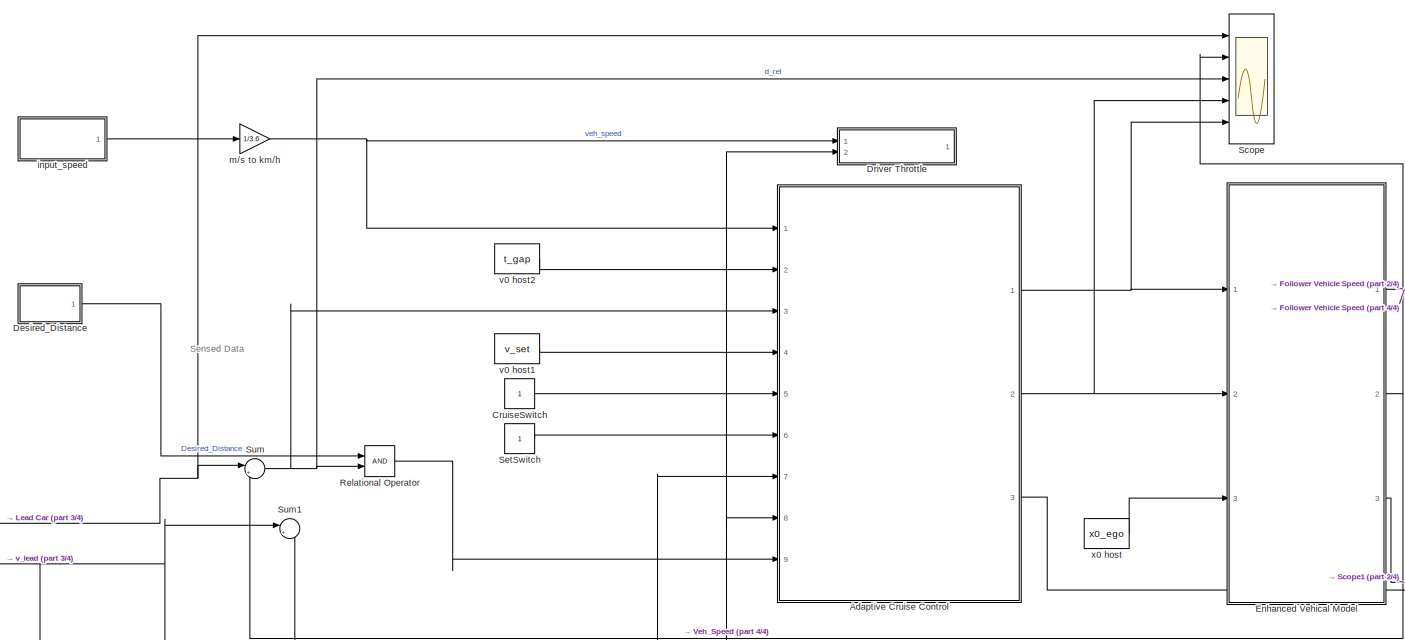
[diagram: root canvas - part 1/4, top center region]
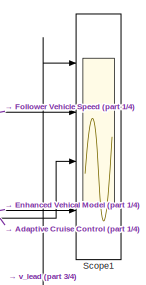
[diagram: root canvas - part 2/4, middle right region]
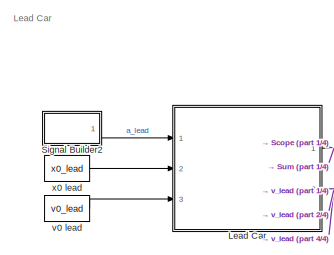
[diagram: root canvas - part 3/4, middle left region]
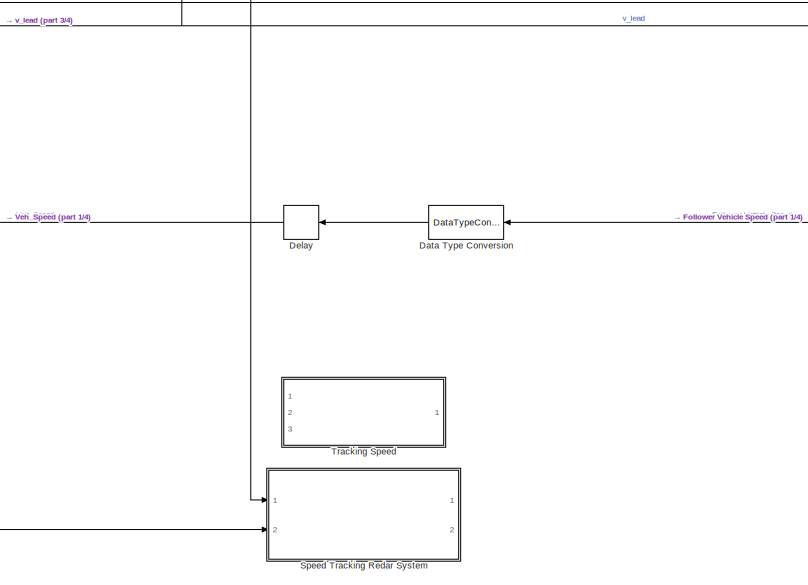
[diagram: root canvas - part 4/4, bottom center region]
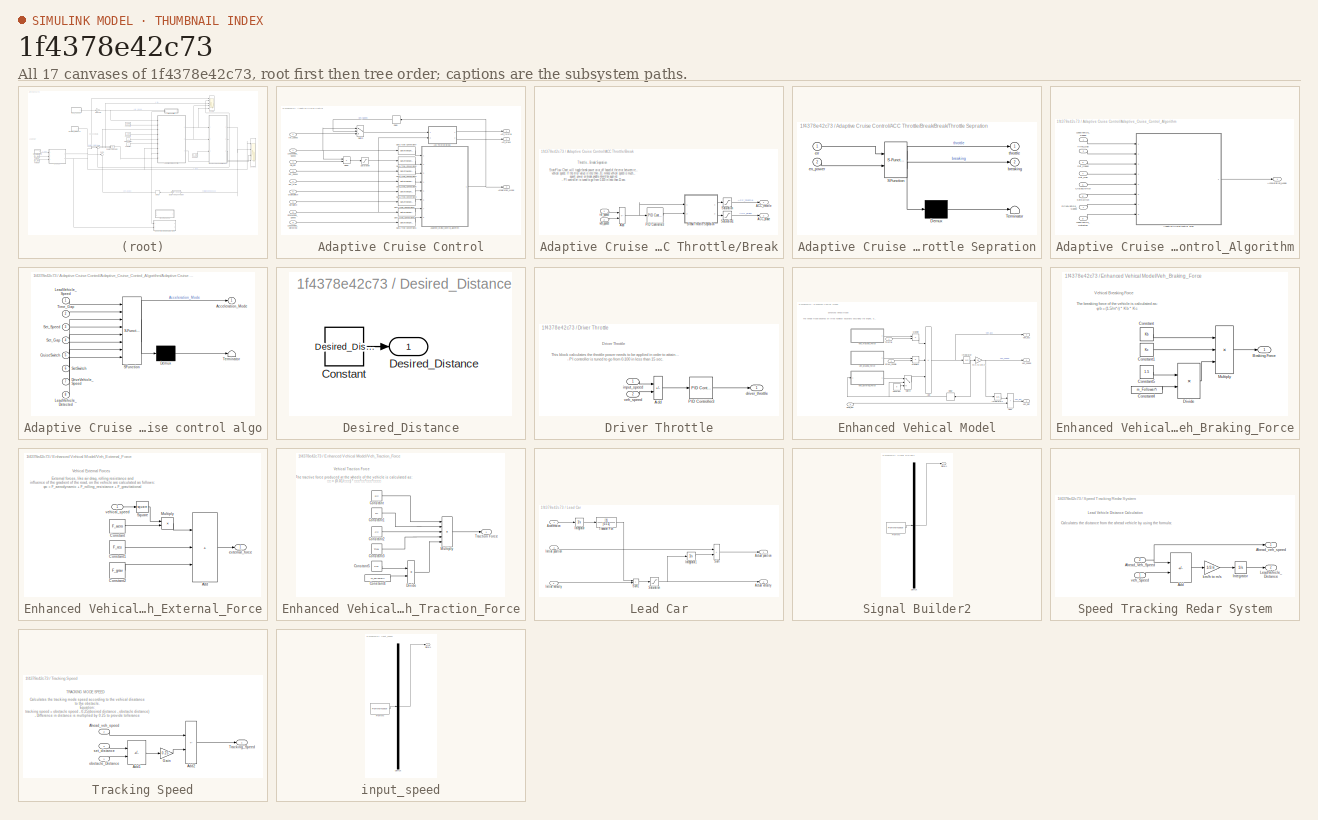
[diagram: thumbnail index - all 17 canvases of the model, root first then tree order]
MODEL slx_1f4378e42c73
KIND model
CONFIG AbsTol = auto
CONFIG EnableMultiTasking = off
CONFIG FixedStep = auto
CONFIG MaxStep = auto
CONFIG MinStep = auto
CONFIG RelTol = 1e-3
CONFIG SampleTimeConstraint = Unconstrained
CONFIG Solver = VariableStepAuto
CONFIG SolverName = VariableStepAuto
CONFIG StartTime = 0.0
CONFIG StopTime = 500
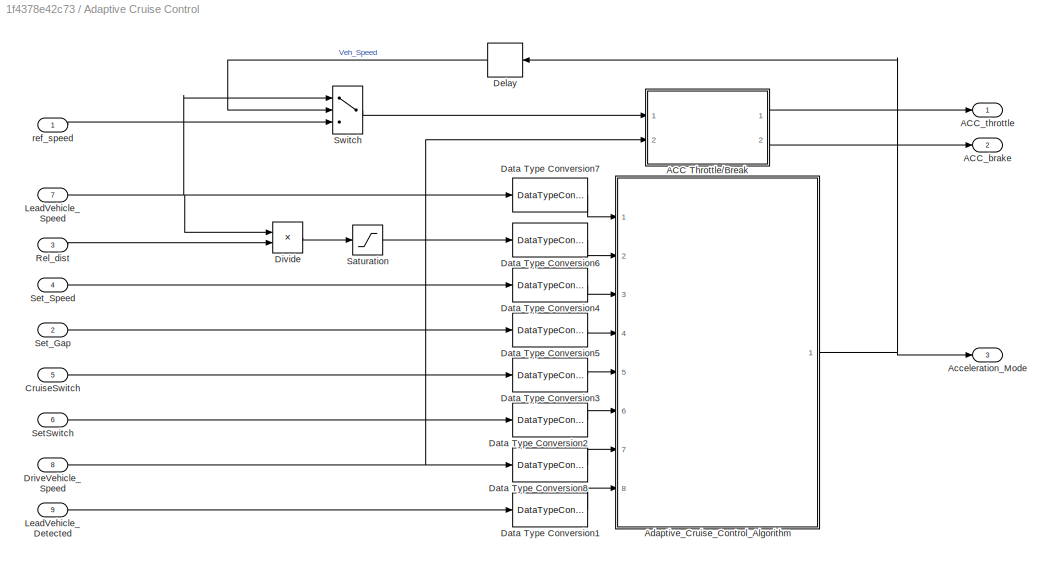
BLOCK [SubSystem] Adaptive Cruise Control
  Ports = [9, 3]
  RequestExecContextInheritance = off
BLOCK [SubSystem] Adaptive Cruise Control/ACC Throttle//Break
  NameLocation = top
  Ports = [2, 2]
  RequestExecContextInheritance = off
BLOCK [Outport] Adaptive Cruise Control/ACC Throttle//Break/ACC_brake
  Port = 2
  VectorParamsAs1DForOutWhenUnconnected = off
BLOCK [Outport] Adaptive Cruise Control/ACC Throttle//Break/ACC_throttle
  VectorParamsAs1DForOutWhenUnconnected = off
BLOCK [Sum] Adaptive Cruise Control/ACC Throttle//Break/Add
  IconShape = rectangular
  Inputs = +-
  Ports = [2, 1]
BLOCK [SubSystem] Adaptive Cruise Control/ACC Throttle//Break/Break//Throttle Sepration
  ErrorFcn = Stateflow.Translate.translate
  PermitHierarchicalResolution = ExplicitOnly
  Ports = [2, 2]
  RequestExecContextInheritance = off
  SFBlockType = Chart
  TreatAsAtomicUnit = on
BLOCK [Demux] Adaptive Cruise Control/ACC Throttle//Break/Break//Throttle Sepration/ Demux 
  Outputs = 1
  Ports = [1, 1]
BLOCK [S-Function] Adaptive Cruise Control/ACC Throttle//Break/Break//Throttle Sepration/ SFunction 
  EnableBusSupport = on
  FunctionName = sf_sfun
  PortCounts = [2 3]
  Ports = [2, 3]
  SFcnIsStateOwnerBlock = off
  SFunctionDeploymentMode = off
  Tag = Stateflow S-Function 1
BLOCK [Terminator] Adaptive Cruise Control/ACC Throttle//Break/Break//Throttle Sepration/ Terminator 
BLOCK [Outport] Adaptive Cruise Control/ACC Throttle//Break/Break//Throttle Sepration/breaking
  Port = 2
  VectorParamsAs1DForOutWhenUnconnected = off
BLOCK [Inport] Adaptive Cruise Control/ACC Throttle//Break/Break//Throttle Sepration/en_power
  Port = 2
BLOCK [Inport] Adaptive Cruise Control/ACC Throttle//Break/Break//Throttle Sepration/err
BLOCK [Outport] Adaptive Cruise Control/ACC Throttle//Break/Break//Throttle Sepration/throttle
  VectorParamsAs1DForOutWhenUnconnected = off
BLOCK [Reference] Adaptive Cruise Control/ACC Throttle//Break/PID Controller3  REF=simulink/Continuous/PID Controller
  Ports = [1, 1]
  SourceBlock = simulink/Continuous/PID Controller
  SourceProductBaseCode = SL
  SourceType = PID 1dof
BLOCK [Saturate] Adaptive Cruise Control/ACC Throttle//Break/Saturation
  LowerLimit = 0
  UpperLimit = 50
BLOCK [Saturate] Adaptive Cruise Control/ACC Throttle//Break/Saturation1
  LowerLimit = 0
  UpperLimit = 20
BLOCK [Inport] Adaptive Cruise Control/ACC Throttle//Break/ref_speed
BLOCK [Inport] Adaptive Cruise Control/ACC Throttle//Break/veh_speed
  Port = 2
BLOCK [Outport] Adaptive Cruise Control/ACC_brake
  Port = 2
BLOCK [Outport] Adaptive Cruise Control/ACC_throttle
BLOCK [Outport] Adaptive Cruise Control/Acceleration_Mode
  Port = 3
BLOCK [SubSystem] Adaptive Cruise Control/Adaptive_Cruise_Control_Algorithm
  Ports = [8, 1]
  RequestExecContextInheritance = off
BLOCK [Outport] Adaptive Cruise Control/Adaptive_Cruise_Control_Algorithm/Acceleration_Mode
  OutMax = 255
  OutMin = 0
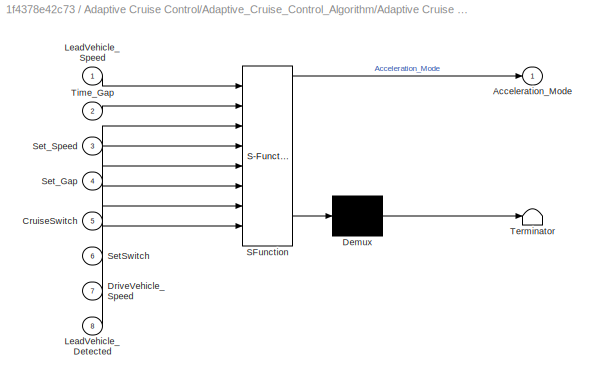
BLOCK [SubSystem] Adaptive Cruise Control/Adaptive_Cruise_Control_Algorithm/Adaptive Cruise control algo
  ErrorFcn = Stateflow.Translate.translate
  PermitHierarchicalResolution = ExplicitOnly
  Ports = [8, 1]
  RequestExecContextInheritance = off
  SFBlockType = Chart
  TreatAsAtomicUnit = on
BLOCK [Demux] Adaptive Cruise Control/Adaptive_Cruise_Control_Algorithm/Adaptive Cruise control algo/ Demux 
  Outputs = 1
  Ports = [1, 1]
BLOCK [S-Function] Adaptive Cruise Control/Adaptive_Cruise_Control_Algorithm/Adaptive Cruise control algo/ SFunction 
  EnableBusSupport = on
  FunctionName = sf_sfun
  PortCounts = [8 2]
  Ports = [8, 2]
  SFcnIsStateOwnerBlock = off
  SFunctionDeploymentMode = off
  Tag = Stateflow S-Function 3
BLOCK [Terminator] Adaptive Cruise Control/Adaptive_Cruise_Control_Algorithm/Adaptive Cruise control algo/ Terminator 
BLOCK [Outport] Adaptive Cruise Control/Adaptive_Cruise_Control_Algorithm/Adaptive Cruise control algo/Acceleration_Mode
BLOCK [Inport] Adaptive Cruise Control/Adaptive_Cruise_Control_Algorithm/Adaptive Cruise control algo/CruiseSwitch
  Port = 5
BLOCK [Inport] Adaptive Cruise Control/Adaptive_Cruise_Control_Algorithm/Adaptive Cruise control algo/DriveVehicle_Speed
  Port = 7
BLOCK [Inport] Adaptive Cruise Control/Adaptive_Cruise_Control_Algorithm/Adaptive Cruise control algo/LeadVehicle_Detected
  Port = 8
BLOCK [Inport] Adaptive Cruise Control/Adaptive_Cruise_Control_Algorithm/Adaptive Cruise control algo/LeadVehicle_Speed
BLOCK [Inport] Adaptive Cruise Control/Adaptive_Cruise_Control_Algorithm/Adaptive Cruise control algo/SetSwitch
  Port = 6
BLOCK [Inport] Adaptive Cruise Control/Adaptive_Cruise_Control_Algorithm/Adaptive Cruise control algo/Set_Gap
  Port = 4
BLOCK [Inport] Adaptive Cruise Control/Adaptive_Cruise_Control_Algorithm/Adaptive Cruise control algo/Set_Speed
  Port = 3
BLOCK [Inport] Adaptive Cruise Control/Adaptive_Cruise_Control_Algorithm/Adaptive Cruise control algo/Time_Gap
  Port = 2
BLOCK [Inport] Adaptive Cruise Control/Adaptive_Cruise_Control_Algorithm/CruiseSwitch
  Port = 5
BLOCK [Inport] Adaptive Cruise Control/Adaptive_Cruise_Control_Algorithm/DriveVehicle_Speed
  OutMax = 255
  OutMin = 0
  Port = 7
BLOCK [Inport] Adaptive Cruise Control/Adaptive_Cruise_Control_Algorithm/LeadVehicle_Detected
  OutMax = 255
  OutMin = 0
  Port = 8
BLOCK [Inport] Adaptive Cruise Control/Adaptive_Cruise_Control_Algorithm/LeadVehicle_Speed
  OutMax = 255
  OutMin = 0
BLOCK [Inport] Adaptive Cruise Control/Adaptive_Cruise_Control_Algorithm/SetSwitch
  Port = 6
BLOCK [Inport] Adaptive Cruise Control/Adaptive_Cruise_Control_Algorithm/Set_Gap
  Port = 4
BLOCK [Inport] Adaptive Cruise Control/Adaptive_Cruise_Control_Algorithm/Set_Speed
  Port = 3
BLOCK [Inport] Adaptive Cruise Control/Adaptive_Cruise_Control_Algorithm/Time_Gap
  Port = 2
BLOCK [Inport] Adaptive Cruise Control/CruiseSwitch
  Port = 5
BLOCK [DataTypeConversion] Adaptive Cruise Control/Data Type Conversion1
  RndMeth = Floor
  SaturateOnIntegerOverflow = off
BLOCK [DataTypeConversion] Adaptive Cruise Control/Data Type Conversion2
  RndMeth = Floor
  SaturateOnIntegerOverflow = off
BLOCK [DataTypeConversion] Adaptive Cruise Control/Data Type Conversion3
  RndMeth = Floor
  SaturateOnIntegerOverflow = off
BLOCK [DataTypeConversion] Adaptive Cruise Control/Data Type Conversion4
  RndMeth = Floor
  SaturateOnIntegerOverflow = off
BLOCK [DataTypeConversion] Adaptive Cruise Control/Data Type Conversion5
  RndMeth = Floor
  SaturateOnIntegerOverflow = off
BLOCK [DataTypeConversion] Adaptive Cruise Control/Data Type Conversion6
  RndMeth = Floor
  SaturateOnIntegerOverflow = off
BLOCK [DataTypeConversion] Adaptive Cruise Control/Data Type Conversion7
  RndMeth = Floor
  SaturateOnIntegerOverflow = off
BLOCK [DataTypeConversion] Adaptive Cruise Control/Data Type Conversion8
  RndMeth = Floor
  SaturateOnIntegerOverflow = off
BLOCK [Delay] Adaptive Cruise Control/Delay
  DelayLength = 1
  InitialCondition = 0
  InputPortMap = u0
  Ports = [1, 1]
BLOCK [Product] Adaptive Cruise Control/Divide
  Inputs = /*
  Ports = [2, 1]
BLOCK [Inport] Adaptive Cruise Control/DriveVehicle_Speed
  OutMax = 255
  OutMin = 0
  Port = 8
BLOCK [Inport] Adaptive Cruise Control/LeadVehicle_Detected
  OutMax = 1
  OutMin = 0
  Port = 9
BLOCK [Inport] Adaptive Cruise Control/LeadVehicle_Speed
  OutMax = 255
  OutMin = 0
  Port = 7
BLOCK [Inport] Adaptive Cruise Control/Rel_dist
  Port = 3
BLOCK [Saturate] Adaptive Cruise Control/Saturation
  LowerLimit = 0
  UpperLimit = 100
BLOCK [Inport] Adaptive Cruise Control/SetSwitch
  Port = 6
BLOCK [Inport] Adaptive Cruise Control/Set_Gap
  Port = 2
BLOCK [Inport] Adaptive Cruise Control/Set_Speed
  Port = 4
BLOCK [Switch] Adaptive Cruise Control/Switch
  Threshold = 2
BLOCK [Inport] Adaptive Cruise Control/ref_speed
BLOCK [Constant] CruiseSwitch
BLOCK [DataTypeConversion] Data Type Conversion
  RndMeth = Floor
  SaturateOnIntegerOverflow = off
BLOCK [Delay] Delay
  DelayLength = 1
  InitialCondition = 0
  InputPortMap = u0
  Ports = [1, 1]
BLOCK [SubSystem] Desired_Distance
  Ports = [0, 1]
  RequestExecContextInheritance = off
BLOCK [Constant] Desired_Distance/Constant
  Value = Desired_Distance
BLOCK [Outport] Desired_Distance/Desired_Distance
  VectorParamsAs1DForOutWhenUnconnected = off
BLOCK [SubSystem] Driver Throttle
  NameLocation = top
  Ports = [2, 1]
  RequestExecContextInheritance = off
BLOCK [Sum] Driver Throttle/Add
  IconShape = rectangular
  Inputs = +-
  Ports = [2, 1]
BLOCK [Reference] Driver Throttle/PID Controller3  REF=simulink/Continuous/PID Controller
  Ports = [1, 1]
  SourceBlock = simulink/Continuous/PID Controller
  SourceProductBaseCode = SL
  SourceType = PID 1dof
BLOCK [Outport] Driver Throttle/driver_throttle
  VectorParamsAs1DForOutWhenUnconnected = off
BLOCK [Inport] Driver Throttle/input_speed
BLOCK [Inport] Driver Throttle/veh_speed
  Port = 2
BLOCK [SubSystem] Enhanced Vehical Model
  Ports = [3, 3]
  RequestExecContextInheritance = off
BLOCK [Sum] Enhanced Vehical Model/Add
  IconShape = rectangular
  Inputs = +--
  Ports = [3, 1]
BLOCK [Sum] Enhanced Vehical Model/Add1
  IconShape = rectangular
  Ports = [2, 1]
BLOCK [Inport] Enhanced Vehical Model/Brake_Peddle
  Port = 2
BLOCK [Constant] Enhanced Vehical Model/Constant
  Value = 0
BLOCK [Delay] Enhanced Vehical Model/Delay
  DelayLength = 1
  InitialCondition = 0
  InputPortMap = u0
  Ports = [1, 1]
BLOCK [Integrator] Enhanced Vehical Model/Integrator
  Ports = [1, 1]
BLOCK [Integrator] Enhanced Vehical Model/Integrator1
  Ports = [1, 1]
BLOCK [Product] Enhanced Vehical Model/Multiply
  Ports = [2, 1]
BLOCK [Product] Enhanced Vehical Model/Multiply1
  Ports = [2, 1]
BLOCK [Switch] Enhanced Vehical Model/Switch
  Criteria = u2 > Threshold
BLOCK [Inport] Enhanced Vehical Model/Throttle
BLOCK [SubSystem] Enhanced Vehical Model/Veh_Braking_Force
  Ports = [0, 1]
  RequestExecContextInheritance = off
BLOCK [Outport] Enhanced Vehical Model/Veh_Braking_Force/Braking Force 
  VectorParamsAs1DForOutWhenUnconnected = off
BLOCK [Constant] Enhanced Vehical Model/Veh_Braking_Force/Constant
  Value = Kb
BLOCK [Constant] Enhanced Vehical Model/Veh_Braking_Force/Constant1
  Value = Kc
BLOCK [Constant] Enhanced Vehical Model/Veh_Braking_Force/Constant4
  Value = m_Follower*r
BLOCK [Constant] Enhanced Vehical Model/Veh_Braking_Force/Constant5
  Value = 1.5
BLOCK [Product] Enhanced Vehical Model/Veh_Braking_Force/Divide
  Inputs = */
  Ports = [2, 1]
BLOCK [Product] Enhanced Vehical Model/Veh_Braking_Force/Multiply
  Inputs = 3
  Ports = [3, 1]
BLOCK [SubSystem] Enhanced Vehical Model/Veh_External_Force
  Ports = [1, 1]
  RequestExecContextInheritance = off
BLOCK [Sum] Enhanced Vehical Model/Veh_External_Force/Add
  IconShape = rectangular
  Inputs = +++
  Ports = [3, 1]
BLOCK [Constant] Enhanced Vehical Model/Veh_External_Force/Constant
  Value = F_aero
BLOCK [Constant] Enhanced Vehical Model/Veh_External_Force/Constant1
  Value = F_res
BLOCK [Constant] Enhanced Vehical Model/Veh_External_Force/Constant2
  Value = F_grav
BLOCK [Product] Enhanced Vehical Model/Veh_External_Force/Multiply
  Ports = [2, 1]
BLOCK [Math] Enhanced Vehical Model/Veh_External_Force/Square
  Operator = square
  Ports = [1, 1]
  SignedPower = on
BLOCK [Outport] Enhanced Vehical Model/Veh_External_Force/external_force
  VectorParamsAs1DForOutWhenUnconnected = off
BLOCK [Inport] Enhanced Vehical Model/Veh_External_Force/vehical_speed
BLOCK [SubSystem] Enhanced Vehical Model/Veh_Traction_Force
  Ports = [0, 1]
  RequestExecContextInheritance = off
BLOCK [Constant] Enhanced Vehical Model/Veh_Traction_Force/Constant
  Value = Rtr
BLOCK [Constant] Enhanced Vehical Model/Veh_Traction_Force/Constant1
  Value = Rf
BLOCK [Constant] Enhanced Vehical Model/Veh_Traction_Force/Constant2
  Value = Ctr
BLOCK [Constant] Enhanced Vehical Model/Veh_Traction_Force/Constant3
  Value = Tmax
BLOCK [Constant] Enhanced Vehical Model/Veh_Traction_Force/Constant4
  Value = m_Follower*r
BLOCK [Constant] Enhanced Vehical Model/Veh_Traction_Force/Constant5
  Value = 0.01
BLOCK [Product] Enhanced Vehical Model/Veh_Traction_Force/Divide
  Inputs = */
  Ports = [2, 1]
BLOCK [Product] Enhanced Vehical Model/Veh_Traction_Force/Multiply
  Inputs = 5
  Ports = [5, 1]
BLOCK [Outport] Enhanced Vehical Model/Veh_Traction_Force/Traction Force
  VectorParamsAs1DForOutWhenUnconnected = off
BLOCK [Inport] Enhanced Vehical Model/initial_dist
  Port = 3
BLOCK [Gain] Enhanced Vehical Model/m//s to km//h
  Gain = 3.6
BLOCK [Outport] Enhanced Vehical Model/veh_acc
  Port = 3
  VectorParamsAs1DForOutWhenUnconnected = off
BLOCK [Outport] Enhanced Vehical Model/veh_dist
  Port = 2
  VectorParamsAs1DForOutWhenUnconnected = off
BLOCK [Outport] Enhanced Vehical Model/veh_speed
  VectorParamsAs1DForOutWhenUnconnected = off
BLOCK [SubSystem] Lead Car
  Ports = [3, 2]
  RequestExecContextInheritance = off
BLOCK [Inport] Lead Car/Acceleration
BLOCK [Outport] Lead Car/Actual position
  VectorParamsAs1DForOutWhenUnconnected = off
BLOCK [Outport] Lead Car/Actual velocity
  Port = 2
  VectorParamsAs1DForOutWhenUnconnected = off
BLOCK [Inport] Lead Car/Initial position
  Port = 2
BLOCK [Inport] Lead Car/Initial velocity
  Port = 3
BLOCK [Integrator] Lead Car/Integrator
  Ports = [1, 1]
BLOCK [Integrator] Lead Car/Integrator1
  Ports = [1, 1]
BLOCK [Saturate] Lead Car/Saturation
  LowerLimit = 0
  UpperLimit = 50
BLOCK [Sum] Lead Car/Sum
  IconShape = rectangular
  Ports = [2, 1]
BLOCK [Sum] Lead Car/Sum1
  IconShape = rectangular
  Ports = [2, 1]
BLOCK [TransferFcn] Lead Car/Transfer Fcn
  Denominator = [0.5 1]
BLOCK [RelationalOperator] Relational Operator
  InputSameDT = off
  OutDataTypeStr = boolean
  Ports = [2, 1]
  RndMeth = Simplest
BLOCK [Scope] Scope
  Floating = off
  NumInputPorts = 5
  Ports = [5]
  ScopeSpecificationString = Simulink.scopes.TimeScopeBlockCfg('CurrentConfiguration', extmgr.ConfigurationSet(extmgr.Configuration('Core','General UI',true),extmgr.Configuration('Core','Source UI',true),extmgr.Configuration('Sources','WiredSimulink',true),extmgr.Configuration('Visuals','Time Domain',true,'SerializedDisplays',{struct('MinYLimReal','-771.4446','MaxYLimReal','7443.00137','YLabelReal','{\itv} in {\it km/h}','Min...<+4366ch>
BLOCK [Scope] Scope1
  Floating = off
  NumInputPorts = 4
  Ports = [4]
  ScopeSpecificationString = Simulink.scopes.TimeScopeBlockCfg('CurrentConfiguration', extmgr.ConfigurationSet(extmgr.Configuration('Core','General UI',true),extmgr.Configuration('Core','Source UI',true),extmgr.Configuration('Sources','WiredSimulink',true,'DataLoggingVariableName','ScopeData1'),extmgr.Configuration('Visuals','Time Domain',true,'SerializedDisplays',{struct('MinYLimReal','-6.25','MaxYLimReal','56.25','YLabelRea...<+4290ch>
BLOCK [Constant] SetSwitch
BLOCK [SubSystem] Signal Builder2
  ClipboardFcn = sigbuilder_block('clipboard');
  CloseFcn = sigbuilder_block('close');
  ContinueFcn = sigbuilder_block('continue');
  CopyFcn = sigbuilder_block('copy');
  DeleteFcn = sigbuilder_block('delete');
  LoadFcn = sigbuilder_block('load');
  MaskHideContents = on
  ModelCloseFcn = sigbuilder_block('modelClose');
  NameChangeFcn = sigbuilder_block('namechange');
  OpenFcn = sigbuilder_block('open',[883.5 285.75 550.5 318.75 ]);
  PauseFcn = sigbuilder_block('pause');
  Ports = [0, 1]
  PreSaveFcn = sigbuilder_block('preSave');
  RequestExecContextInheritance = off
  StartFcn = sigbuilder_block('start');
  StopFcn = sigbuilder_block('stop');
  Tag = STV Subsys
BLOCK [Demux] Signal Builder2/Demux
  DisplayOption = none
  Outputs = 1
  Ports = [1, 1]
  Tag = STV Demux
BLOCK [FromWorkspace] Signal Builder2/FromWs
  Tag = STV FromWs
  VariableName = tuvar
BLOCK [Outport] Signal Builder2/Signal 1
  Tag = STV Outport
BLOCK [SubSystem] Speed Tracking Redar System
  Commented = on
  Ports = [2, 2]
  RequestExecContextInheritance = off
BLOCK [Sum] Speed Tracking Redar System/Add
  IconShape = rectangular
  Inputs = +-
  Ports = [2, 1]
BLOCK [Inport] Speed Tracking Redar System/Ahead_Veh_Speed
  Port = 2
BLOCK [Outport] Speed Tracking Redar System/Ahead_veh_speed
  VectorParamsAs1DForOutWhenUnconnected = off
BLOCK [Integrator] Speed Tracking Redar System/Integrator
  InitialCondition = 100
  Ports = [1, 1]
BLOCK [Outport] Speed Tracking Redar System/LeadVehicle_Distance
  Port = 2
  VectorParamsAs1DForOutWhenUnconnected = off
BLOCK [Gain] Speed Tracking Redar System/km//h to m//s
  Gain = 1/3.6
BLOCK [Inport] Speed Tracking Redar System/veh_Speed
BLOCK [Sum] Sum
  Inputs = |+-
  Ports = [2, 1]
BLOCK [Sum] Sum1
  Inputs = |+-
  Ports = [2, 1]
BLOCK [SubSystem] Tracking Speed
  Commented = on
  Ports = [3, 1]
  RequestExecContextInheritance = off
BLOCK [Sum] Tracking Speed/Add1
  IconShape = rectangular
  Inputs = +-
  Ports = [2, 1]
BLOCK [Sum] Tracking Speed/Add2
  IconShape = rectangular
  Inputs = +-
  Ports = [2, 1]
BLOCK [Inport] Tracking Speed/Ahead_veh_speed
  Port = 2
BLOCK [Gain] Tracking Speed/Gain
  Gain = 0.25
BLOCK [Outport] Tracking Speed/Tracking_Speed
  VectorParamsAs1DForOutWhenUnconnected = off
BLOCK [Inport] Tracking Speed/obstacle_Distance
BLOCK [Inport] Tracking Speed/set_distance
  Port = 3
BLOCK [SubSystem] input_speed
  ClipboardFcn = sigbuilder_block('clipboard');
  CloseFcn = sigbuilder_block('close');
  ContinueFcn = sigbuilder_block('continue');
  CopyFcn = sigbuilder_block('copy');
  DeleteFcn = sigbuilder_block('delete');
  LoadFcn = sigbuilder_block('load');
  MaskHideContents = on
  ModelCloseFcn = sigbuilder_block('modelClose');
  NameChangeFcn = sigbuilder_block('namechange');
  OpenFcn = sigbuilder_block('open',[167.25 146.25 1152 549.75 ]);
  PauseFcn = sigbuilder_block('pause');
  Ports = [0, 1]
  PreSaveFcn = sigbuilder_block('preSave');
  RequestExecContextInheritance = off
  StartFcn = sigbuilder_block('start');
  StopFcn = sigbuilder_block('stop');
  Tag = STV Subsys
BLOCK [Demux] input_speed/Demux
  DisplayOption = none
  Outputs = 1
  Ports = [1, 1]
  Tag = STV Demux
BLOCK [FromWorkspace] input_speed/FromWs
  Tag = STV FromWs
  VariableName = tuvar
BLOCK [Outport] input_speed/Signal 1
  Tag = STV Outport
BLOCK [Gain] m//s to km//h
  Gain = 1/3.6
BLOCK [Constant] v0 host1
  SampleTime = Ts
  Value = v_set
BLOCK [Constant] v0 host2
  SampleTime = Ts
  Value = t_gap
BLOCK [Constant] v0 lead
  SampleTime = Ts
  Value = v0_lead
BLOCK [Constant] x0 host
  SampleTime = Ts
  Value = x0_ego
BLOCK [Constant] x0 lead
  SampleTime = Ts
  Value = x0_lead
ANNOTATION (root): Lead Car
ANNOTATION (root): Sensed Data
ANNOTATION Adaptive Cruise Control/ACC Throttle//Break: StateFlow Chart will toggle break power on or off based of the error between refrence speed and vehical speed. If the error value is less than -10, means vehical speed is much greater than refrence speed, power on break paddle should be applied. - PI controller is tuned to go from 0-100 in less than 15 sec.
ANNOTATION Adaptive Cruise Control/ACC Throttle//Break: Throttle - Break Sepration
ANNOTATION Driver Throttle: This block calculates the throttle power needs to be applied in order to attain the input speed - PI controller is tuned to go from 0-100 in less than 15 sec.
ANNOTATION Driver Throttle: Driver Throttle
ANNOTATION Enhanced Vehical Model: The vehicle model depends on three nonlinear equations describing the engine, brake system and dynamics of the vehicle.
ANNOTATION Enhanced Vehical Model: Enhanced Vehical Model
ANNOTATION Enhanced Vehical Model/Veh_Braking_Force: The breaking force of the vehicle is calculated as: φb = (1.5/m*r) * Kb * Kc
ANNOTATION Enhanced Vehical Model/Veh_Braking_Force: Vehical Breaking Force
ANNOTATION Enhanced Vehical Model/Veh_External_Force: External forces, like air drag, rolling resistance and influence of the gradient of the road, on the vehicle are calculated as follows: φc = F_aerodynamic + F_rolling_resistance + F_gravitational
ANNOTATION Enhanced Vehical Model/Veh_External_Force: Vehical External Forces
ANNOTATION Enhanced Vehical Model/Veh_Traction_Force: The tractive force produced at the wheels of the vehicle is calculated as: 𝜑𝑡 = (0.01/𝑚∗𝑟) * 𝑅𝑡𝑟*𝑅𝑓*𝐶𝑡𝑟*𝑇𝑚𝑎𝑥
ANNOTATION Enhanced Vehical Model/Veh_Traction_Force: Vehical Traction Force
ANNOTATION Speed Tracking Redar System: Calculates the distance from the ahead vehicle by using the formula:
ANNOTATION Speed Tracking Redar System: Lead Vehicle Distance Calculation
ANNOTATION Tracking Speed: Calculates the tracking mode speed according to the vehical disatance to the obstacle. Equation: tracking speed = obstacle speed - 0.25(desired distance - obstacle distance) - Difference in distance is multiplied by 0.25 to provide tollerance
ANNOTATION Tracking Speed: TRACKING MODE SPEED
NET Adaptive Cruise Control/ACC Throttle//Break/Add:1 -> Adaptive Cruise Control/ACC Throttle//Break/Break//Throttle Sepration:1, Adaptive Cruise Control/ACC Throttle//Break/PID Controller3:1
LINE Adaptive Cruise Control/ACC Throttle//Break/Break//Throttle Sepration:1 -> Adaptive Cruise Control/ACC Throttle//Break/Saturation:1
LINE Adaptive Cruise Control/ACC Throttle//Break/Break//Throttle Sepration:2 -> Adaptive Cruise Control/ACC Throttle//Break/Saturation1:1
LINE Adaptive Cruise Control/ACC Throttle//Break/PID Controller3:1 -> Adaptive Cruise Control/ACC Throttle//Break/Break//Throttle Sepration:2
LINE Adaptive Cruise Control/ACC Throttle//Break/Saturation1:1 -> Adaptive Cruise Control/ACC Throttle//Break/ACC_brake:1
LINE Adaptive Cruise Control/ACC Throttle//Break/Saturation:1 -> Adaptive Cruise Control/ACC Throttle//Break/ACC_throttle:1
LINE Adaptive Cruise Control/ACC Throttle//Break/ref_speed:1 -> Adaptive Cruise Control/ACC Throttle//Break/Add:1
LINE Adaptive Cruise Control/ACC Throttle//Break/veh_speed:1 -> Adaptive Cruise Control/ACC Throttle//Break/Add:2
LINE Adaptive Cruise Control/ACC Throttle//Break:1 -> Adaptive Cruise Control/ACC_throttle:1
LINE Adaptive Cruise Control/ACC Throttle//Break:2 -> Adaptive Cruise Control/ACC_brake:1
LINE Adaptive Cruise Control/Adaptive_Cruise_Control_Algorithm/Adaptive Cruise control algo:1 -> Adaptive Cruise Control/Adaptive_Cruise_Control_Algorithm/Acceleration_Mode:1
LINE Adaptive Cruise Control/Adaptive_Cruise_Control_Algorithm/CruiseSwitch:1 -> Adaptive Cruise Control/Adaptive_Cruise_Control_Algorithm/Adaptive Cruise control algo:5
LINE Adaptive Cruise Control/Adaptive_Cruise_Control_Algorithm/DriveVehicle_Speed:1 -> Adaptive Cruise Control/Adaptive_Cruise_Control_Algorithm/Adaptive Cruise control algo:7
LINE Adaptive Cruise Control/Adaptive_Cruise_Control_Algorithm/LeadVehicle_Detected:1 -> Adaptive Cruise Control/Adaptive_Cruise_Control_Algorithm/Adaptive Cruise control algo:8
LINE Adaptive Cruise Control/Adaptive_Cruise_Control_Algorithm/LeadVehicle_Speed:1 -> Adaptive Cruise Control/Adaptive_Cruise_Control_Algorithm/Adaptive Cruise control algo:1
LINE Adaptive Cruise Control/Adaptive_Cruise_Control_Algorithm/SetSwitch:1 -> Adaptive Cruise Control/Adaptive_Cruise_Control_Algorithm/Adaptive Cruise control algo:6
LINE Adaptive Cruise Control/Adaptive_Cruise_Control_Algorithm/Set_Gap:1 -> Adaptive Cruise Control/Adaptive_Cruise_Control_Algorithm/Adaptive Cruise control algo:4
LINE Adaptive Cruise Control/Adaptive_Cruise_Control_Algorithm/Set_Speed:1 -> Adaptive Cruise Control/Adaptive_Cruise_Control_Algorithm/Adaptive Cruise control algo:3
LINE Adaptive Cruise Control/Adaptive_Cruise_Control_Algorithm/Time_Gap:1 -> Adaptive Cruise Control/Adaptive_Cruise_Control_Algorithm/Adaptive Cruise control algo:2
NET Adaptive Cruise Control/Adaptive_Cruise_Control_Algorithm:1 -> Adaptive Cruise Control/Acceleration_Mode:1, Adaptive Cruise Control/Delay:1
LINE Adaptive Cruise Control/CruiseSwitch:1 -> Adaptive Cruise Control/Data Type Conversion3:1
LINE Adaptive Cruise Control/Data Type Conversion1:1 -> Adaptive Cruise Control/Adaptive_Cruise_Control_Algorithm:8
LINE Adaptive Cruise Control/Data Type Conversion2:1 -> Adaptive Cruise Control/Adaptive_Cruise_Control_Algorithm:6
LINE Adaptive Cruise Control/Data Type Conversion3:1 -> Adaptive Cruise Control/Adaptive_Cruise_Control_Algorithm:5
LINE Adaptive Cruise Control/Data Type Conversion4:1 -> Adaptive Cruise Control/Adaptive_Cruise_Control_Algorithm:3
LINE Adaptive Cruise Control/Data Type Conversion5:1 -> Adaptive Cruise Control/Adaptive_Cruise_Control_Algorithm:4
LINE Adaptive Cruise Control/Data Type Conversion6:1 -> Adaptive Cruise Control/Adaptive_Cruise_Control_Algorithm:2
LINE Adaptive Cruise Control/Data Type Conversion7:1 -> Adaptive Cruise Control/Adaptive_Cruise_Control_Algorithm:1
LINE Adaptive Cruise Control/Data Type Conversion8:1 -> Adaptive Cruise Control/Adaptive_Cruise_Control_Algorithm:7
LINE Adaptive Cruise Control/Delay:1 -> Adaptive Cruise Control/Switch:2
LINE Adaptive Cruise Control/Divide:1 -> Adaptive Cruise Control/Saturation:1
NET Adaptive Cruise Control/DriveVehicle_Speed:1 -> Adaptive Cruise Control/ACC Throttle//Break:2, Adaptive Cruise Control/Data Type Conversion8:1
LINE Adaptive Cruise Control/LeadVehicle_Detected:1 -> Adaptive Cruise Control/Data Type Conversion1:1
NET Adaptive Cruise Control/LeadVehicle_Speed:1 -> Adaptive Cruise Control/Data Type Conversion7:1, Adaptive Cruise Control/Divide:1, Adaptive Cruise Control/Switch:1
LINE Adaptive Cruise Control/Rel_dist:1 -> Adaptive Cruise Control/Divide:2
LINE Adaptive Cruise Control/Saturation:1 -> Adaptive Cruise Control/Data Type Conversion6:1
LINE Adaptive Cruise Control/SetSwitch:1 -> Adaptive Cruise Control/Data Type Conversion2:1
LINE Adaptive Cruise Control/Set_Gap:1 -> Adaptive Cruise Control/Data Type Conversion5:1
LINE Adaptive Cruise Control/Set_Speed:1 -> Adaptive Cruise Control/Data Type Conversion4:1
LINE Adaptive Cruise Control/Switch:1 -> Adaptive Cruise Control/ACC Throttle//Break:1
LINE Adaptive Cruise Control/ref_speed:1 -> Adaptive Cruise Control/Switch:3
NET Adaptive Cruise Control:1 -> Enhanced Vehical Model:1, Scope:5
NET Adaptive Cruise Control:2 -> Enhanced Vehical Model:2, Scope:4
LINE Adaptive Cruise Control:3 -> Scope1:3
LINE CruiseSwitch:1 -> Adaptive Cruise Control:5
LINE Data Type Conversion:1 -> Delay:1
NET Delay:1 -> Adaptive Cruise Control:8, Driver Throttle:2, Speed Tracking Redar System:1, Sum1:2
LINE Desired_Distance/Constant:1 -> Desired_Distance/Desired_Distance:1
LINE Desired_Distance:1 -> Relational Operator:1
LINE Driver Throttle/Add:1 -> Driver Throttle/PID Controller3:1
LINE Driver Throttle/PID Controller3:1 -> Driver Throttle/driver_throttle:1
LINE Driver Throttle/input_speed:1 -> Driver Throttle/Add:1
LINE Driver Throttle/veh_speed:1 -> Driver Throttle/Add:2
LINE Enhanced Vehical Model/Add1:1 -> Enhanced Vehical Model/veh_dist:1
NET Enhanced Vehical Model/Add:1 -> Enhanced Vehical Model/Integrator:1, Enhanced Vehical Model/veh_acc:1
LINE Enhanced Vehical Model/Brake_Peddle:1 -> Enhanced Vehical Model/Multiply1:2
LINE Enhanced Vehical Model/Constant:1 -> Enhanced Vehical Model/Switch:3
NET Enhanced Vehical Model/Delay:1 -> Enhanced Vehical Model/Switch:2, Enhanced Vehical Model/Veh_External_Force:1
LINE Enhanced Vehical Model/Integrator1:1 -> Enhanced Vehical Model/Add1:1
NET Enhanced Vehical Model/Integrator:1 -> Enhanced Vehical Model/Delay:1, Enhanced Vehical Model/m//s to km//h:1
LINE Enhanced Vehical Model/Multiply1:1 -> Enhanced Vehical Model/Add:2
LINE Enhanced Vehical Model/Multiply:1 -> Enhanced Vehical Model/Add:1
LINE Enhanced Vehical Model/Switch:1 -> Enhanced Vehical Model/Add:3
LINE Enhanced Vehical Model/Throttle:1 -> Enhanced Vehical Model/Multiply:2
LINE Enhanced Vehical Model/Veh_Braking_Force/Constant1:1 -> Enhanced Vehical Model/Veh_Braking_Force/Multiply:2
LINE Enhanced Vehical Model/Veh_Braking_Force/Constant4:1 -> Enhanced Vehical Model/Veh_Braking_Force/Divide:2
LINE Enhanced Vehical Model/Veh_Braking_Force/Constant5:1 -> Enhanced Vehical Model/Veh_Braking_Force/Divide:1
LINE Enhanced Vehical Model/Veh_Braking_Force/Constant:1 -> Enhanced Vehical Model/Veh_Braking_Force/Multiply:1
LINE Enhanced Vehical Model/Veh_Braking_Force/Divide:1 -> Enhanced Vehical Model/Veh_Braking_Force/Multiply:3
LINE Enhanced Vehical Model/Veh_Braking_Force/Multiply:1 -> Enhanced Vehical Model/Veh_Braking_Force/Braking Force :1
LINE Enhanced Vehical Model/Veh_Braking_Force:1 -> Enhanced Vehical Model/Multiply1:1
LINE Enhanced Vehical Model/Veh_External_Force/Add:1 -> Enhanced Vehical Model/Veh_External_Force/external_force:1
LINE Enhanced Vehical Model/Veh_External_Force/Constant1:1 -> Enhanced Vehical Model/Veh_External_Force/Add:2
LINE Enhanced Vehical Model/Veh_External_Force/Constant2:1 -> Enhanced Vehical Model/Veh_External_Force/Add:3
LINE Enhanced Vehical Model/Veh_External_Force/Constant:1 -> Enhanced Vehical Model/Veh_External_Force/Multiply:2
LINE Enhanced Vehical Model/Veh_External_Force/Multiply:1 -> Enhanced Vehical Model/Veh_External_Force/Add:1
LINE Enhanced Vehical Model/Veh_External_Force/Square:1 -> Enhanced Vehical Model/Veh_External_Force/Multiply:1
LINE Enhanced Vehical Model/Veh_External_Force/vehical_speed:1 -> Enhanced Vehical Model/Veh_External_Force/Square:1
LINE Enhanced Vehical Model/Veh_External_Force:1 -> Enhanced Vehical Model/Switch:1
LINE Enhanced Vehical Model/Veh_Traction_Force/Constant1:1 -> Enhanced Vehical Model/Veh_Traction_Force/Multiply:2
LINE Enhanced Vehical Model/Veh_Traction_Force/Constant2:1 -> Enhanced Vehical Model/Veh_Traction_Force/Multiply:3
LINE Enhanced Vehical Model/Veh_Traction_Force/Constant3:1 -> Enhanced Vehical Model/Veh_Traction_Force/Multiply:4
LINE Enhanced Vehical Model/Veh_Traction_Force/Constant4:1 -> Enhanced Vehical Model/Veh_Traction_Force/Divide:2
LINE Enhanced Vehical Model/Veh_Traction_Force/Constant5:1 -> Enhanced Vehical Model/Veh_Traction_Force/Divide:1
LINE Enhanced Vehical Model/Veh_Traction_Force/Constant:1 -> Enhanced Vehical Model/Veh_Traction_Force/Multiply:1
LINE Enhanced Vehical Model/Veh_Traction_Force/Divide:1 -> Enhanced Vehical Model/Veh_Traction_Force/Multiply:5
LINE Enhanced Vehical Model/Veh_Traction_Force/Multiply:1 -> Enhanced Vehical Model/Veh_Traction_Force/Traction Force:1
LINE Enhanced Vehical Model/Veh_Traction_Force:1 -> Enhanced Vehical Model/Multiply:1
LINE Enhanced Vehical Model/initial_dist:1 -> Enhanced Vehical Model/Add1:2
NET Enhanced Vehical Model/m//s to km//h:1 -> Enhanced Vehical Model/Integrator1:1, Enhanced Vehical Model/veh_speed:1
NET Enhanced Vehical Model:1 -> Data Type Conversion:1, Scope1:2
NET Enhanced Vehical Model:2 -> Scope:2, Sum:2
LINE Enhanced Vehical Model:3 -> Scope1:4
LINE Lead Car/Acceleration:1 -> Lead Car/Integrator:1
LINE Lead Car/Initial position:1 -> Lead Car/Sum:1
LINE Lead Car/Initial velocity:1 -> Lead Car/Sum1:2
LINE Lead Car/Integrator1:1 -> Lead Car/Sum:2
LINE Lead Car/Integrator:1 -> Lead Car/Transfer Fcn:1
NET Lead Car/Saturation:1 -> Lead Car/Actual velocity:1, Lead Car/Integrator1:1
LINE Lead Car/Sum1:1 -> Lead Car/Saturation:1
LINE Lead Car/Sum:1 -> Lead Car/Actual position:1
LINE Lead Car/Transfer Fcn:1 -> Lead Car/Sum1:1
NET Lead Car:1 -> Scope:1, Sum:1
NET Lead Car:2 -> Adaptive Cruise Control:7, Scope1:1, Speed Tracking Redar System:2, Sum1:1
LINE Relational Operator:1 -> Adaptive Cruise Control:9
LINE SetSwitch:1 -> Adaptive Cruise Control:6
LINE Signal Builder2:1 -> Lead Car:1
LINE Speed Tracking Redar System/Add:1 -> Speed Tracking Redar System/km//h to m//s:1
NET Speed Tracking Redar System/Ahead_Veh_Speed:1 -> Speed Tracking Redar System/Add:1, Speed Tracking Redar System/Ahead_veh_speed:1
LINE Speed Tracking Redar System/Integrator:1 -> Speed Tracking Redar System/LeadVehicle_Distance:1
LINE Speed Tracking Redar System/km//h to m//s:1 -> Speed Tracking Redar System/Integrator:1
LINE Speed Tracking Redar System/veh_Speed:1 -> Speed Tracking Redar System/Add:2
NET Sum:1 -> Adaptive Cruise Control:3, Relational Operator:2, Scope:3
LINE Tracking Speed/Add1:1 -> Tracking Speed/Gain:1
LINE Tracking Speed/Add2:1 -> Tracking Speed/Tracking_Speed:1
LINE Tracking Speed/Ahead_veh_speed:1 -> Tracking Speed/Add2:1
LINE Tracking Speed/Gain:1 -> Tracking Speed/Add2:2
LINE Tracking Speed/obstacle_Distance:1 -> Tracking Speed/Add1:2
LINE Tracking Speed/set_distance:1 -> Tracking Speed/Add1:1
LINE input_speed:1 -> m//s to km//h:1
NET m//s to km//h:1 -> Adaptive Cruise Control:1, Driver Throttle:1
LINE v0 host1:1 -> Adaptive Cruise Control:4
LINE v0 host2:1 -> Adaptive Cruise Control:2
LINE v0 lead:1 -> Lead Car:3
LINE x0 host:1 -> Enhanced Vehical Model:3
LINE x0 lead:1 -> Lead Car:2
note: NET lines group one-source signal fan-out (src -> all destinations, sorted); 1:1 wires keep LINE
CHART Adaptive Cruise Control/ACC Throttle//Break/Break//Throttle Sepration states=4 transitions=3
  STATE_LABEL '<!DOCTYPE HTML PUBLIC "-//W3C//DTD HTML 4.0//EN" "http://www.w3.org/TR/REC-html40/strict.dtd">\n<html><head><meta name="qrichtext" content="1" /><style type="text/css">\np, li { white-space: pre-wrap; }\n</style></head><body style=" font-family:\'Helvetica\'; font-size:12px; font-weight:400; font-style:normal;">\n<p style=" margin-top:0px; margin-bottom:0px; margin-left:0px; margin-right:0px; -qt-block-...<+141ch>'
  STATE_LABEL '<!DOCTYPE HTML PUBLIC "-//W3C//DTD HTML 4.0//EN" "http://www.w3.org/TR/REC-html40/strict.dtd">\n<html><head><meta name="qrichtext" content="1" /><style type="text/css">\np, li { white-space: pre-wrap; }\n</style></head><body style=" font-family:\'Helvetica\'; font-size:6px; font-weight:400; font-style:normal;">\n<table border="1" style=" border-color:#000000; border-style:solid; margin-top:0px; margin-b...<+2429ch>'
  STATE_LABEL 'OPEN_THROTTLE\nen: breaking = 0;\nduring: throttle = en_power;\n'
  STATE_LABEL 'APPLY_BREAK\n during: breaking = en_power;\nen:throttle = 0;\n'
CHART Adaptive Cruise Control/Adaptive_Cruise_Control_Algorithm/Adaptive Cruise control algo states=10 transitions=18
  STATE_LABEL 'ACC_STANDBY_MODE\nentry:\nAcceleration_Mode = 1;'
  STATE_LABEL 'ACC_OFF_MODE\nentry:\nAcceleration_Mode = 0;'
  STATE_LABEL 'ACC_ON_MODE'
  STATE_LABEL 'LeadVehicle_Not_Detected_Resume\nentry:\nAcceleration_Mode= 1;'
  STATE_LABEL 'LeadVehicle_Detected_Resume\nentry:\nAcceleration_Mode= 3;'
  STATE_LABEL 'LeadVehicle_Detected_Follow\nentry:\nAcceleration_Mode= 2;'
  STATE_LABEL 'LeadVehicle_Not_Detected\nentry:\nAcceleration_Mode= 1;'
  STATE_LABEL 'LeadVehicle_Speed_equal_Set_Speed\nentry:\nAcceleration_Mode= 4;'
  STATE_LABEL 'LeadVehicle_Speed_lessthan_Set_Speed\nentry:\nAcceleration_Mode= 5;'
  STATE_LABEL '[LeadVehicle_Detected ==0]'
  STATE_LABEL '[(DriveVehicle_Speed==Set_Speed) ...\n&& (LeadVehicle_Speed >= Set_Speed)...\n && (Time_Gap>=Set_Gap)]'
  STATE_LABEL '[(LeadVehicle_Detected==0) ...\n|| (DriveVehicle_Speed <= Set_Speed)]'
  STATE_LABEL '[(DriveVehicle_Speed< Set_Speed) ...\n&& (LeadVehicle_Speed > DriveVehicle_Speed)...\n|| (Time_Gap >= Set_Gap)]'
  STATE_LABEL '[(DriveVehicle_Speed< Set_Speed) ...\n&& (LeadVehicle_Speed > DriveVehicle_Speed)...\n&& (Time_Gap >= Set_Gap)]'
  STATE_LABEL '[LeadVehicle_Detected ==0]'
  STATE_LABEL '[(LeadVehicle_Detected==1) && ...\n(DriveVehicle_Speed == Set_Speed) && ...\n (LeadVehicle_Speed >= Set_Speed) &&...\n (Time_Gap>=Set_Gap)]'
  STATE_LABEL '[(LeadVehicle_Detected==1) ...\n&& (LeadVehicle_Speed < Set_Speed)...\n || (Time_Gap<Set_Gap)]'
  STATE_LABEL '[(LeadVehicle_Detected==0) && ...\n(DriveVehicle_Speed == Set_Speed)]'
  STATE_LABEL '[(LeadVehicle_Detected==1) ...\n&& (LeadVehicle_Speed < Set_Speed)...\n || (Time_Gap<Set_Gap)]'
  STATE_LABEL '[(LeadVehicle_Speed< Set_Speed) ...\n&& (LeadVehicle_Speed < DriveVehicle_Speed)...\n|| (Time_Gap == 0.75*Set_Gap)]'
  STATE_LABEL '[(LeadVehicle_Speed*1.25 >= DriveVehicle_Speed) ...\n&& (LeadVehicle_Speed*0.75 <= DriveVehicle_Speed)...\n&& (DriveVehicle_Speed < Set_Speed) && (Time_Gap <=1.25*Set_Gap)...\n&& (Time_Gap >= 0.75*Set_Gap)]'
  STATE_LABEL 'LeadVehicle_Not_Detected_Resume\nentry:\nAcceleration_Mode= 1;'
  STATE_LABEL 'LeadVehicle_Detected_Resume\nentry:\nAcceleration_Mode= 3;'
  STATE_LABEL 'LeadVehicle_Detected_Follow\nentry:\nAcceleration_Mode= 2;'
  STATE_LABEL 'LeadVehicle_Not_Detected\nentry:\nAcceleration_Mode= 1;'
  STATE_LABEL 'LeadVehicle_Speed_equal_Set_Speed\nentry:\nAcceleration_Mode= 4;'
  STATE_LABEL 'LeadVehicle_Speed_lessthan_Set_Speed\nentry:\nAcceleration_Mode= 5;'
  STATE_LABEL '<!DOCTYPE HTML PUBLIC "-//W3C//DTD HTML 4.0//EN" "http://www.w3.org/TR/REC-html40/strict.dtd">\n<html><head><meta name="qrichtext" content="1" /><style type="text/css">\np, li { white-space: pre-wrap; }\n</style></head><body align="left" style=" font-family:\'Helvetica\'; font-size:8px; font-weight:400; font-style:normal;">\n<table border="1" style=" border-color:#000000; border-style:solid; margin-top:...<+3928ch>'
CHART  states=0 transitions=0
CHART  states=0 transitions=0
